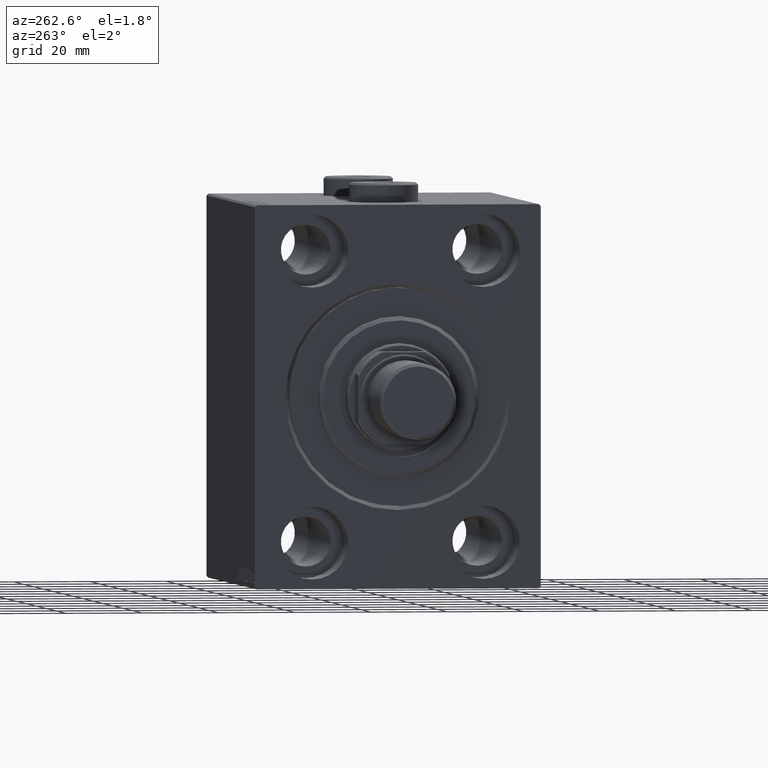
[diagram: clean part render]
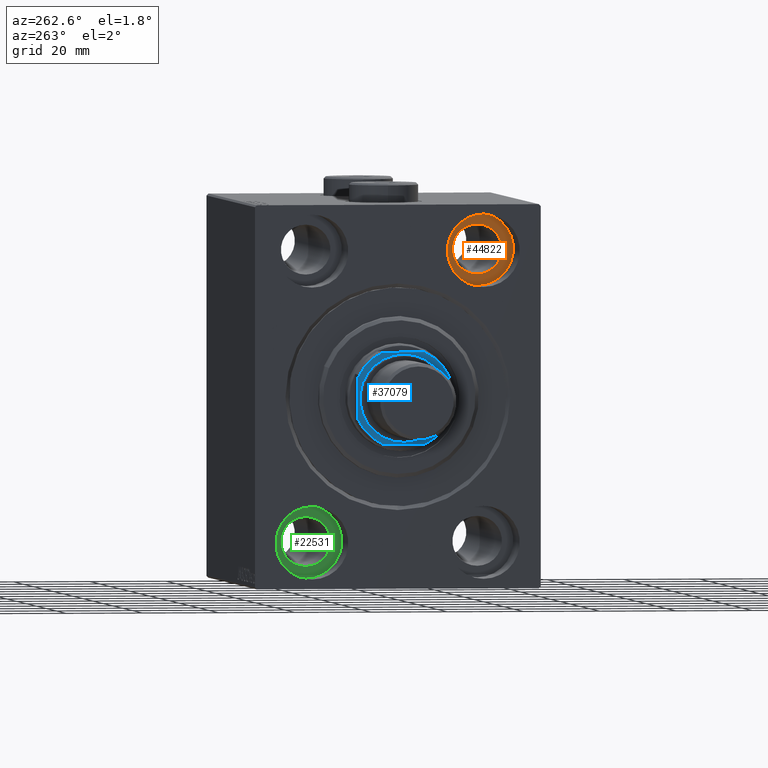
[diagram: same view with three faces highlighted in distinct colors, each labeled with its STEP entity id]
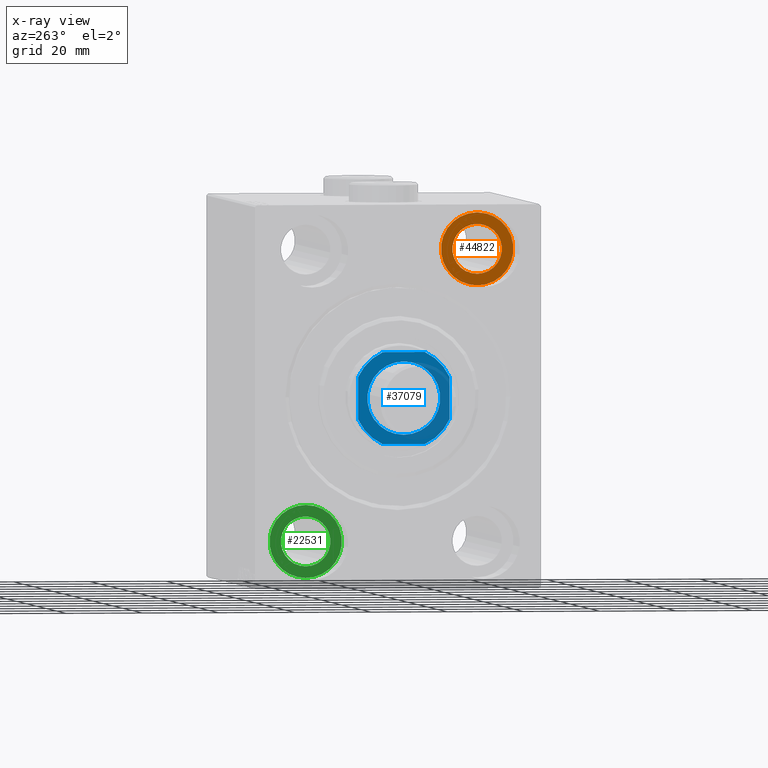
[diagram: x-ray of the same camera — body ghosted, the three highlighted faces saturated]
A machine part, auxiliary view with three faces highlighted in distinct colors.
The next image is the same camera in x-ray (body ghosted, the three faces saturated) — at least one of them is partly hidden behind the body in this view.
Their STEP definitions:

[orange] entity #44822 — the highlighted planar face has unit normal (-1, 0, 0).
#457 = CARTESIAN_POINT ( 'NONE',  ( 13.00000000000000000, -22.49999999999999645, 37.99999999999999289 ) ) ;
#721 = DIRECTION ( 'NONE',  ( 0.000000000000000000, 0.000000000000000000, 1.000000000000000000 ) ) ;
#1246 = CIRCLE ( 'NONE', #27148, 9.500000000000001776 ) ;
#2082 = CARTESIAN_POINT ( 'NONE',  ( 13.00000000000000000, -22.49999999999999645, 37.99999999999999289 ) ) ;
#2520 = DIRECTION ( 'NONE',  ( 0.000000000000000000, 0.000000000000000000, 1.000000000000000000 ) ) ;
#2799 = CIRCLE ( 'NONE', #43468, 9.500000000000001776 ) ;
#4182 = CARTESIAN_POINT ( 'NONE',  ( 12.99999999999999822, -22.49999999999999645, 37.99999999999999289 ) ) ;
#4928 = EDGE_LOOP ( 'NONE', ( #40574, #34372 ) ) ;
#5600 = EDGE_CURVE ( 'NONE', #38203, #15300, #29051, .T. ) ;
#6731 = DIRECTION ( 'NONE',  ( 0.000000000000000000, 0.000000000000000000, 1.000000000000000000 ) ) ;
#9017 = AXIS2_PLACEMENT_3D ( 'NONE', #23594, #34495, #2520 ) ;
#9240 = ORIENTED_EDGE ( 'NONE', *, *, #29540, .T. ) ;
#9934 = FACE_BOUND ( 'NONE', #4928, .T. ) ;
#13403 = CARTESIAN_POINT ( 'NONE',  ( 12.99999999999999822, -22.49999999999999645, 31.49999999999999289 ) ) ;
#15300 = VERTEX_POINT ( 'NONE', #13403 ) ;
#17003 = EDGE_CURVE ( 'NONE', #36921, #32753, #1246, .T. ) ;
#19671 = DIRECTION ( 'NONE',  ( 0.000000000000000000, 0.000000000000000000, 1.000000000000000000 ) ) ;
#21108 = CARTESIAN_POINT ( 'NONE',  ( 12.99999999999999822, -22.49999999999999645, 44.49999999999999289 ) ) ;
#23594 = CARTESIAN_POINT ( 'NONE',  ( 13.00000000000000000, 0.000000000000000000, 0.000000000000000000 ) ) ;
#23615 = DIRECTION ( 'NONE',  ( -1.000000000000000000, 0.000000000000000000, 0.000000000000000000 ) ) ;
#24610 = ORIENTED_EDGE ( 'NONE', *, *, #17003, .T. ) ;
#26617 = FACE_OUTER_BOUND ( 'NONE', #43486, .T. ) ;
#27148 = AXIS2_PLACEMENT_3D ( 'NONE', #2082, #23615, #19671 ) ;
#29051 = CIRCLE ( 'NONE', #35001, 6.499999999999999112 ) ;
#29540 = EDGE_CURVE ( 'NONE', #32753, #36921, #2799, .T. ) ;
#30154 = CARTESIAN_POINT ( 'NONE',  ( 12.99999999999999822, -22.49999999999999645, 37.99999999999999289 ) ) ;
#32753 = VERTEX_POINT ( 'NONE', #45633 ) ;
#34372 = ORIENTED_EDGE ( 'NONE', *, *, #40149, .F. ) ;
#34495 = DIRECTION ( 'NONE',  ( -1.000000000000000000, 0.000000000000000000, 0.000000000000000000 ) ) ;
#35001 = AXIS2_PLACEMENT_3D ( 'NONE', #30154, #39882, #40802 ) ;
#36921 = VERTEX_POINT ( 'NONE', #40190 ) ;
#38203 = VERTEX_POINT ( 'NONE', #21108 ) ;
#38922 = DIRECTION ( 'NONE',  ( -1.000000000000000000, 0.000000000000000000, 0.000000000000000000 ) ) ;
#39181 = DIRECTION ( 'NONE',  ( -1.000000000000000000, 0.000000000000000000, 0.000000000000000000 ) ) ;
#39882 = DIRECTION ( 'NONE',  ( -1.000000000000000000, 0.000000000000000000, 0.000000000000000000 ) ) ;
#39970 = AXIS2_PLACEMENT_3D ( 'NONE', #4182, #39181, #721 ) ;
#40149 = EDGE_CURVE ( 'NONE', #15300, #38203, #42192, .T. ) ;
#40190 = CARTESIAN_POINT ( 'NONE',  ( 13.00000000000000000, -22.49999999999999645, 47.49999999999999289 ) ) ;
#40574 = ORIENTED_EDGE ( 'NONE', *, *, #5600, .F. ) ;
#40746 = PLANE ( 'NONE',  #9017 ) ;
#40802 = DIRECTION ( 'NONE',  ( 0.000000000000000000, 0.000000000000000000, 1.000000000000000000 ) ) ;
#42192 = CIRCLE ( 'NONE', #39970, 6.499999999999999112 ) ;
#43468 = AXIS2_PLACEMENT_3D ( 'NONE', #457, #38922, #6731 ) ;
#43486 = EDGE_LOOP ( 'NONE', ( #24610, #9240 ) ) ;
#44822 = ADVANCED_FACE ( 'NONE', ( #9934, #26617 ), #40746, .T. ) ;
#45633 = CARTESIAN_POINT ( 'NONE',  ( 13.00000000000000000, -22.49999999999999645, 28.49999999999998934 ) ) ;

[blue] entity #37079 — the highlighted planar face has unit normal (-1, 0, 0).
#241 = AXIS2_PLACEMENT_3D ( 'NONE', #29394, #43513, #8313 ) ;
#872 = EDGE_CURVE ( 'NONE', #28018, #32219, #21964, .T. ) ;
#1152 = LINE ( 'NONE', #32655, #10006 ) ;
#2396 = CARTESIAN_POINT ( 'NONE',  ( 11.99999999999999645, 5.499090833947039236, 96.00000000000000000 ) ) ;
#2533 = DIRECTION ( 'NONE',  ( 1.000000000000000000, 0.000000000000000000, 0.000000000000000000 ) ) ;
#3123 = DIRECTION ( 'NONE',  ( 0.000000000000000000, -0.000000000000000000, -1.000000000000000000 ) ) ;
#3222 = DIRECTION ( 'NONE',  ( -0.000000000000000000, 0.000000000000000000, 1.000000000000000000 ) ) ;
#3564 = FACE_OUTER_BOUND ( 'NONE', #5988, .T. ) ;
#4648 = VERTEX_POINT ( 'NONE', #45003 ) ;
#4963 = EDGE_CURVE ( 'NONE', #18884, #8017, #10886, .T. ) ;
#5033 = DIRECTION ( 'NONE',  ( -0.000000000000000000, 0.000000000000000000, 1.000000000000000000 ) ) ;
#5181 = EDGE_CURVE ( 'NONE', #15082, #21807, #43093, .T. ) ;
#5229 = ORIENTED_EDGE ( 'NONE', *, *, #29355, .T. ) ;
#5988 = EDGE_LOOP ( 'NONE', ( #17468, #36587, #19366, #28058, #31637, #37123, #5229, #26197 ) ) ;
#6160 = VECTOR ( 'NONE', #32637, 1000.000000000000000 ) ;
#6742 = DIRECTION ( 'NONE',  ( 2.168404344971008868E-16, -1.000000000000000000, 0.000000000000000000 ) ) ;
#7057 = DIRECTION ( 'NONE',  ( 1.000000000000000000, 0.000000000000000000, 0.000000000000000000 ) ) ;
#8017 = VERTEX_POINT ( 'NONE', #8704 ) ;
#8313 = DIRECTION ( 'NONE',  ( 1.000000000000000000, 0.000000000000000000, 0.000000000000000000 ) ) ;
#8595 = LINE ( 'NONE', #15289, #33142 ) ;
#8704 = CARTESIAN_POINT ( 'NONE',  ( -12.00000000000000000, -5.499090833947057888, 96.00000000000000000 ) ) ;
#8756 = EDGE_CURVE ( 'NONE', #44488, #28018, #39500, .T. ) ;
#8983 = AXIS2_PLACEMENT_3D ( 'NONE', #15445, #5033, #29591 ) ;
#9227 = EDGE_CURVE ( 'NONE', #4648, #15597, #12163, .T. ) ;
#10006 = VECTOR ( 'NONE', #25921, 1000.000000000000000 ) ;
#10886 = LINE ( 'NONE', #17372, #38705 ) ;
#12163 = CIRCLE ( 'NONE', #19522, 13.20000000000000995 ) ;
#12498 = CIRCLE ( 'NONE', #38414, 13.20000000000002238 ) ;
#14281 = DIRECTION ( 'NONE',  ( -0.000000000000000000, 0.000000000000000000, 1.000000000000000000 ) ) ;
#15082 = VERTEX_POINT ( 'NONE', #29746 ) ;
#15236 = CARTESIAN_POINT ( 'NONE',  ( -12.00000000000000355, 11.99999999999999645, 96.00000000000000000 ) ) ;
#15289 = CARTESIAN_POINT ( 'NONE',  ( -11.99999999999999822, -12.00000000000000355, 96.00000000000000000 ) ) ;
#15433 = CARTESIAN_POINT ( 'NONE',  ( -9.549999999999988276, 1.169537693185720980E-15, 96.00000000000000000 ) ) ;
#15445 = CARTESIAN_POINT ( 'NONE',  ( 0.000000000000000000, 0.000000000000000000, 96.00000000000000000 ) ) ;
#15597 = VERTEX_POINT ( 'NONE', #17728 ) ;
#16190 = AXIS2_PLACEMENT_3D ( 'NONE', #24414, #21590, #32271 ) ;
#17372 = CARTESIAN_POINT ( 'NONE',  ( -12.00000000000000355, 11.99999999999999645, 96.00000000000000000 ) ) ;
#17468 = ORIENTED_EDGE ( 'NONE', *, *, #21568, .T. ) ;
#17728 = CARTESIAN_POINT ( 'NONE',  ( 12.00000000000000000, -5.499090833947034795, 96.00000000000000000 ) ) ;
#17805 = AXIS2_PLACEMENT_3D ( 'NONE', #28360, #3123, #7057 ) ;
#18884 = VERTEX_POINT ( 'NONE', #37672 ) ;
#19366 = ORIENTED_EDGE ( 'NONE', *, *, #872, .T. ) ;
#19522 = AXIS2_PLACEMENT_3D ( 'NONE', #30199, #26255, #40394 ) ;
#21024 = AXIS2_PLACEMENT_3D ( 'NONE', #45798, #14281, #32130 ) ;
#21568 = EDGE_CURVE ( 'NONE', #15597, #44488, #1152, .T. ) ;
#21590 = DIRECTION ( 'NONE',  ( -0.000000000000000000, 0.000000000000000000, 1.000000000000000000 ) ) ;
#21807 = VERTEX_POINT ( 'NONE', #15433 ) ;
#21964 = LINE ( 'NONE', #15236, #6160 ) ;
#22481 = DIRECTION ( 'NONE',  ( 1.000000000000000000, 0.000000000000000000, 0.000000000000000000 ) ) ;
#23800 = EDGE_LOOP ( 'NONE', ( #44126, #37219 ) ) ;
#24414 = CARTESIAN_POINT ( 'NONE',  ( 0.000000000000000000, 0.000000000000000000, 96.00000000000000000 ) ) ;
#25921 = DIRECTION ( 'NONE',  ( -2.168404344971008868E-16, 1.000000000000000000, -0.000000000000000000 ) ) ;
#26197 = ORIENTED_EDGE ( 'NONE', *, *, #9227, .T. ) ;
#26255 = DIRECTION ( 'NONE',  ( -0.000000000000000000, 0.000000000000000000, 1.000000000000000000 ) ) ;
#28018 = VERTEX_POINT ( 'NONE', #44360 ) ;
#28058 = ORIENTED_EDGE ( 'NONE', *, *, #36347, .T. ) ;
#28360 = CARTESIAN_POINT ( 'NONE',  ( 0.000000000000000000, 0.000000000000000000, 96.00000000000000000 ) ) ;
#28574 = FACE_BOUND ( 'NONE', #23800, .T. ) ;
#28592 = CARTESIAN_POINT ( 'NONE',  ( -5.499090833947067658, 11.99999999999999645, 96.00000000000000000 ) ) ;
#29355 = EDGE_CURVE ( 'NONE', #35307, #4648, #8595, .T. ) ;
#29394 = CARTESIAN_POINT ( 'NONE',  ( 0.000000000000000000, 0.000000000000000000, 96.00000000000000000 ) ) ;
#29591 = DIRECTION ( 'NONE',  ( 1.000000000000000000, 0.000000000000000000, 0.000000000000000000 ) ) ;
#29746 = CARTESIAN_POINT ( 'NONE',  ( 9.549999999999988276, 0.000000000000000000, 96.00000000000000000 ) ) ;
#30199 = CARTESIAN_POINT ( 'NONE',  ( 0.000000000000000000, 0.000000000000000000, 96.00000000000000000 ) ) ;
#31637 = ORIENTED_EDGE ( 'NONE', *, *, #4963, .T. ) ;
#32130 = DIRECTION ( 'NONE',  ( 1.000000000000000000, 0.000000000000000000, 0.000000000000000000 ) ) ;
#32219 = VERTEX_POINT ( 'NONE', #28592 ) ;
#32271 = DIRECTION ( 'NONE',  ( 1.000000000000000000, 0.000000000000000000, 0.000000000000000000 ) ) ;
#32637 = DIRECTION ( 'NONE',  ( -1.000000000000000000, -0.000000000000000000, -0.000000000000000000 ) ) ;
#32655 = CARTESIAN_POINT ( 'NONE',  ( 11.99999999999999645, 11.99999999999999645, 96.00000000000000000 ) ) ;
#33142 = VECTOR ( 'NONE', #22481, 1000.000000000000000 ) ;
#34505 = CARTESIAN_POINT ( 'NONE',  ( 0.000000000000000000, 0.000000000000000000, 96.00000000000000000 ) ) ;
#35307 = VERTEX_POINT ( 'NONE', #40347 ) ;
#35973 = PLANE ( 'NONE',  #16190 ) ;
#36347 = EDGE_CURVE ( 'NONE', #32219, #18884, #12498, .T. ) ;
#36587 = ORIENTED_EDGE ( 'NONE', *, *, #8756, .T. ) ;
#37079 = ADVANCED_FACE ( 'NONE', ( #28574, #3564 ), #35973, .T. ) ;
#37110 = CIRCLE ( 'NONE', #8983, 13.20000000000002238 ) ;
#37123 = ORIENTED_EDGE ( 'NONE', *, *, #44137, .T. ) ;
#37219 = ORIENTED_EDGE ( 'NONE', *, *, #41014, .T. ) ;
#37672 = CARTESIAN_POINT ( 'NONE',  ( -12.00000000000000178, 5.499090833947057000, 96.00000000000000000 ) ) ;
#37804 = CIRCLE ( 'NONE', #17805, 9.549999999999988276 ) ;
#38414 = AXIS2_PLACEMENT_3D ( 'NONE', #34505, #3222, #2533 ) ;
#38705 = VECTOR ( 'NONE', #6742, 1000.000000000000000 ) ;
#39500 = CIRCLE ( 'NONE', #21024, 13.20000000000000995 ) ;
#40347 = CARTESIAN_POINT ( 'NONE',  ( -5.499090833947052559, -12.00000000000000355, 96.00000000000000000 ) ) ;
#40394 = DIRECTION ( 'NONE',  ( 1.000000000000000000, 0.000000000000000000, 0.000000000000000000 ) ) ;
#41014 = EDGE_CURVE ( 'NONE', #21807, #15082, #37804, .T. ) ;
#43093 = CIRCLE ( 'NONE', #241, 9.549999999999988276 ) ;
#43513 = DIRECTION ( 'NONE',  ( 0.000000000000000000, -0.000000000000000000, -1.000000000000000000 ) ) ;
#44126 = ORIENTED_EDGE ( 'NONE', *, *, #5181, .T. ) ;
#44137 = EDGE_CURVE ( 'NONE', #8017, #35307, #37110, .T. ) ;
#44360 = CARTESIAN_POINT ( 'NONE',  ( 5.499090833947041901, 11.99999999999999645, 96.00000000000000000 ) ) ;
#44488 = VERTEX_POINT ( 'NONE', #2396 ) ;
#45003 = CARTESIAN_POINT ( 'NONE',  ( 5.499090833947025914, -12.00000000000000355, 96.00000000000000000 ) ) ;
#45798 = CARTESIAN_POINT ( 'NONE',  ( 0.000000000000000000, 0.000000000000000000, 96.00000000000000000 ) ) ;

[green] entity #22531 — the highlighted planar face has unit normal (-1, 0, 0).
#1431 = AXIS2_PLACEMENT_3D ( 'NONE', #2513, #16625, #12007 ) ;
#2513 = CARTESIAN_POINT ( 'NONE',  ( 13.00000000000000000, 22.49999999999999645, -37.99999999999999289 ) ) ;
#2930 = CIRCLE ( 'NONE', #1431, 9.500000000000001776 ) ;
#3224 = PLANE ( 'NONE',  #14440 ) ;
#3607 = DIRECTION ( 'NONE',  ( 0.000000000000000000, 0.000000000000000000, 1.000000000000000000 ) ) ;
#5317 = ORIENTED_EDGE ( 'NONE', *, *, #11977, .T. ) ;
#6639 = CARTESIAN_POINT ( 'NONE',  ( 12.99999999999999822, 22.49999999999999645, -37.99999999999999289 ) ) ;
#7047 = AXIS2_PLACEMENT_3D ( 'NONE', #22254, #33623, #36643 ) ;
#7373 = DIRECTION ( 'NONE',  ( -1.000000000000000000, 0.000000000000000000, 0.000000000000000000 ) ) ;
#9703 = EDGE_LOOP ( 'NONE', ( #12046, #9748 ) ) ;
#9748 = ORIENTED_EDGE ( 'NONE', *, *, #13853, .F. ) ;
#9947 = FACE_OUTER_BOUND ( 'NONE', #10579, .T. ) ;
#10579 = EDGE_LOOP ( 'NONE', ( #11601, #5317 ) ) ;
#11601 = ORIENTED_EDGE ( 'NONE', *, *, #33099, .T. ) ;
#11977 = EDGE_CURVE ( 'NONE', #25814, #35875, #29995, .T. ) ;
#12007 = DIRECTION ( 'NONE',  ( 0.000000000000000000, 0.000000000000000000, 1.000000000000000000 ) ) ;
#12046 = ORIENTED_EDGE ( 'NONE', *, *, #24130, .F. ) ;
#12275 = AXIS2_PLACEMENT_3D ( 'NONE', #6639, #21414, #3607 ) ;
#12826 = CARTESIAN_POINT ( 'NONE',  ( 13.00000000000000000, 22.49999999999999645, -28.49999999999998934 ) ) ;
#13096 = VERTEX_POINT ( 'NONE', #33620 ) ;
#13853 = EDGE_CURVE ( 'NONE', #42051, #13096, #30055, .T. ) ;
#14440 = AXIS2_PLACEMENT_3D ( 'NONE', #28458, #7373, #35417 ) ;
#14532 = FACE_BOUND ( 'NONE', #9703, .T. ) ;
#16570 = DIRECTION ( 'NONE',  ( 0.000000000000000000, 0.000000000000000000, 1.000000000000000000 ) ) ;
#16625 = DIRECTION ( 'NONE',  ( -1.000000000000000000, 0.000000000000000000, 0.000000000000000000 ) ) ;
#19125 = CARTESIAN_POINT ( 'NONE',  ( 13.00000000000000000, 22.49999999999999645, -47.49999999999999289 ) ) ;
#21414 = DIRECTION ( 'NONE',  ( -1.000000000000000000, 0.000000000000000000, 0.000000000000000000 ) ) ;
#21888 = AXIS2_PLACEMENT_3D ( 'NONE', #41604, #33972, #16570 ) ;
#22254 = CARTESIAN_POINT ( 'NONE',  ( 13.00000000000000000, 22.49999999999999645, -37.99999999999999289 ) ) ;
#22531 = ADVANCED_FACE ( 'NONE', ( #14532, #9947 ), #3224, .T. ) ;
#24130 = EDGE_CURVE ( 'NONE', #13096, #42051, #25577, .T. ) ;
#25577 = CIRCLE ( 'NONE', #12275, 6.499999999999999112 ) ;
#25814 = VERTEX_POINT ( 'NONE', #19125 ) ;
#28458 = CARTESIAN_POINT ( 'NONE',  ( 13.00000000000000000, 22.49999999999999645, -37.99999999999999289 ) ) ;
#29995 = CIRCLE ( 'NONE', #7047, 9.500000000000001776 ) ;
#30055 = CIRCLE ( 'NONE', #21888, 6.499999999999999112 ) ;
#33099 = EDGE_CURVE ( 'NONE', #35875, #25814, #2930, .T. ) ;
#33620 = CARTESIAN_POINT ( 'NONE',  ( 12.99999999999999822, 22.49999999999999645, -31.49999999999999289 ) ) ;
#33623 = DIRECTION ( 'NONE',  ( -1.000000000000000000, 0.000000000000000000, 0.000000000000000000 ) ) ;
#33972 = DIRECTION ( 'NONE',  ( -1.000000000000000000, 0.000000000000000000, 0.000000000000000000 ) ) ;
#35417 = DIRECTION ( 'NONE',  ( 0.000000000000000000, 0.000000000000000000, 1.000000000000000000 ) ) ;
#35875 = VERTEX_POINT ( 'NONE', #12826 ) ;
#36643 = DIRECTION ( 'NONE',  ( 0.000000000000000000, 0.000000000000000000, 1.000000000000000000 ) ) ;
#39107 = CARTESIAN_POINT ( 'NONE',  ( 12.99999999999999822, 22.49999999999999645, -44.49999999999999289 ) ) ;
#41604 = CARTESIAN_POINT ( 'NONE',  ( 12.99999999999999822, 22.49999999999999645, -37.99999999999999289 ) ) ;
#42051 = VERTEX_POINT ( 'NONE', #39107 ) ;